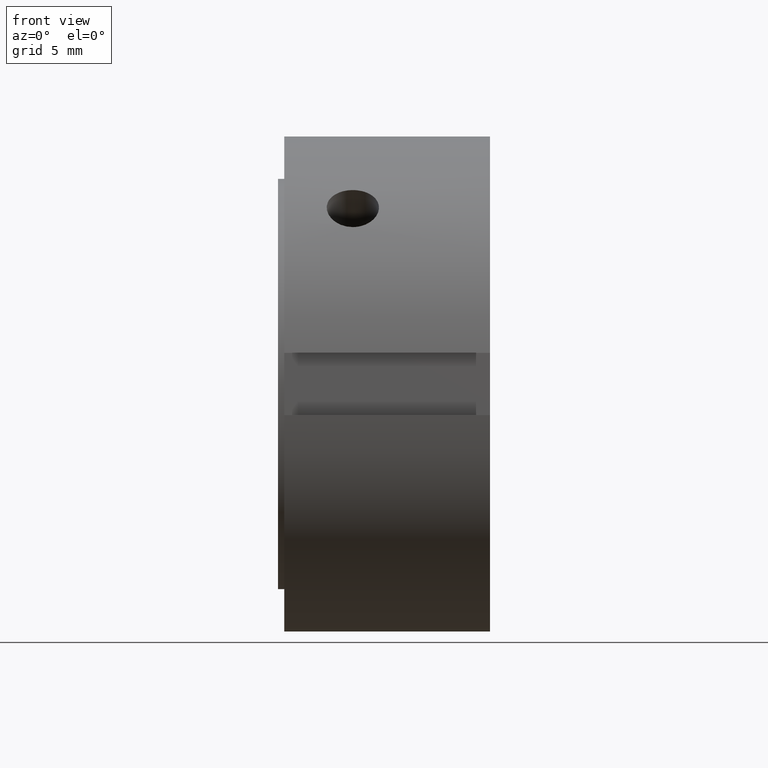
[diagram: clean part render]
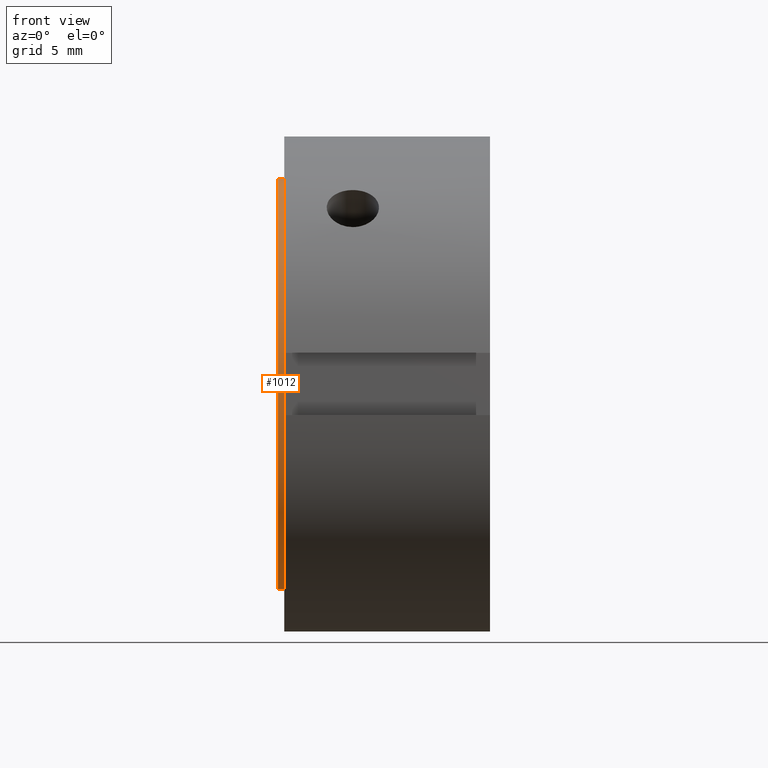
[diagram: same view with one face highlighted and labeled with its STEP entity id]
A machine part, front view. The second image highlights one B-rep face of the part: STEP entity #1012.
In plain terms, the highlighted cylindrical surface (bore or boss wall) has radius 16.5 mm, axis along (1, 0, 0).
Its self-contained STEP definition (entity closure, byte-faithful):
#970=CARTESIAN_POINT('',(-4.440892E-015,16.5,0.0));
#971=VERTEX_POINT('',#970);
#972=CARTESIAN_POINT('',(-4.440892E-015,0.0,0.0));
#973=DIRECTION('',(1.0,0.0,0.0));
#974=DIRECTION('',(0.0,1.0,0.0));
#975=AXIS2_PLACEMENT_3D('',#972,#973,#974);
#976=CIRCLE('',#975,16.5);
#977=EDGE_CURVE('',#971,#971,#976,.T.);
#993=CARTESIAN_POINT('',(0.249999999999997,0.0,0.0));
#994=DIRECTION('',(1.0,0.0,0.0));
#995=DIRECTION('',(0.0,1.0,0.0));
#996=AXIS2_PLACEMENT_3D('',#993,#994,#995);
#997=CYLINDRICAL_SURFACE('',#996,16.5);
#998=CARTESIAN_POINT('',(0.499999999999998,16.5,0.0));
#999=VERTEX_POINT('',#998);
#1000=CARTESIAN_POINT('',(0.499999999999998,0.0,0.0));
#1001=DIRECTION('',(1.0,0.0,0.0));
#1002=DIRECTION('',(0.0,1.0,0.0));
#1003=AXIS2_PLACEMENT_3D('',#1000,#1001,#1002);
#1004=CIRCLE('',#1003,16.5);
#1005=EDGE_CURVE('',#999,#999,#1004,.T.);
#1006=ORIENTED_EDGE('',*,*,#1005,.F.);
#1007=EDGE_LOOP('',(#1006));
#1008=FACE_OUTER_BOUND('',#1007,.T.);
#1009=ORIENTED_EDGE('',*,*,#977,.T.);
#1010=EDGE_LOOP('',(#1009));
#1011=FACE_BOUND('',#1010,.T.);
#1012=ADVANCED_FACE('',(#1008,#1011),#997,.T.);